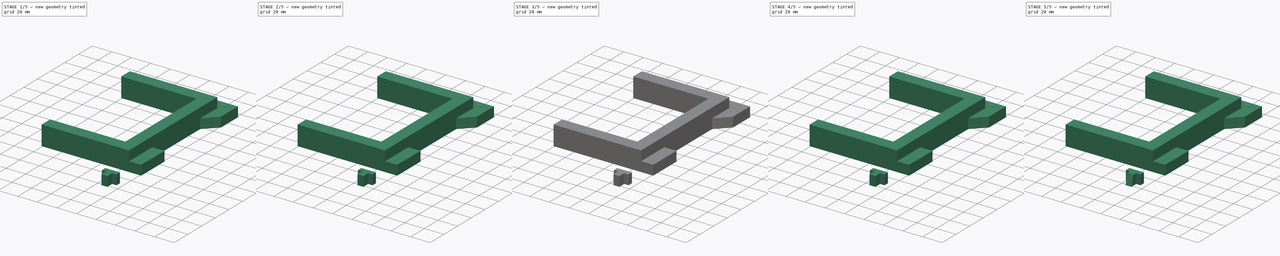
[diagram: build sequence overview — one tinted view per stage of 5, left to right]
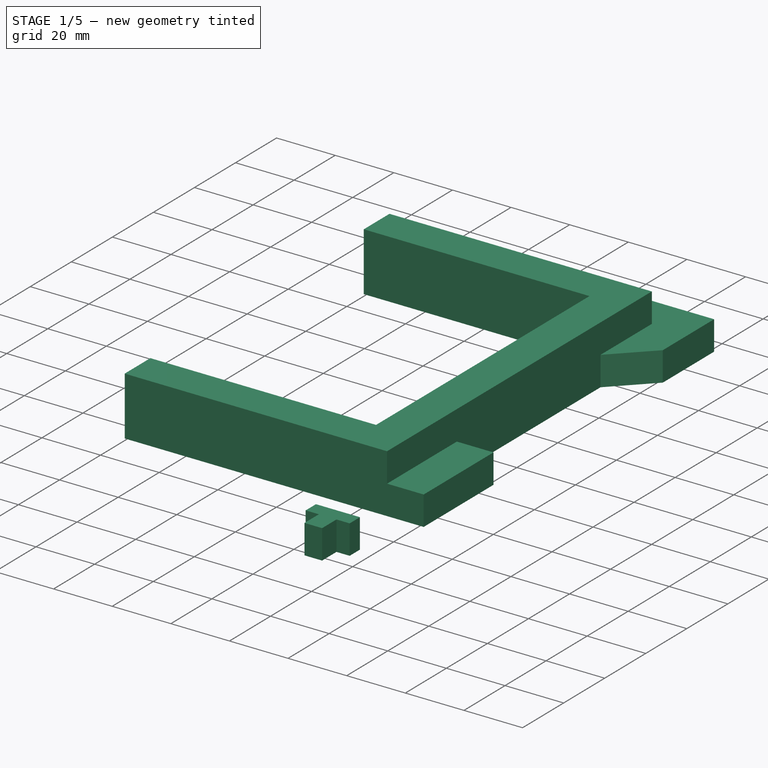
[diagram: stage 1 of 5 — iso view after this stage's code; geometry added in this stage tinted green]
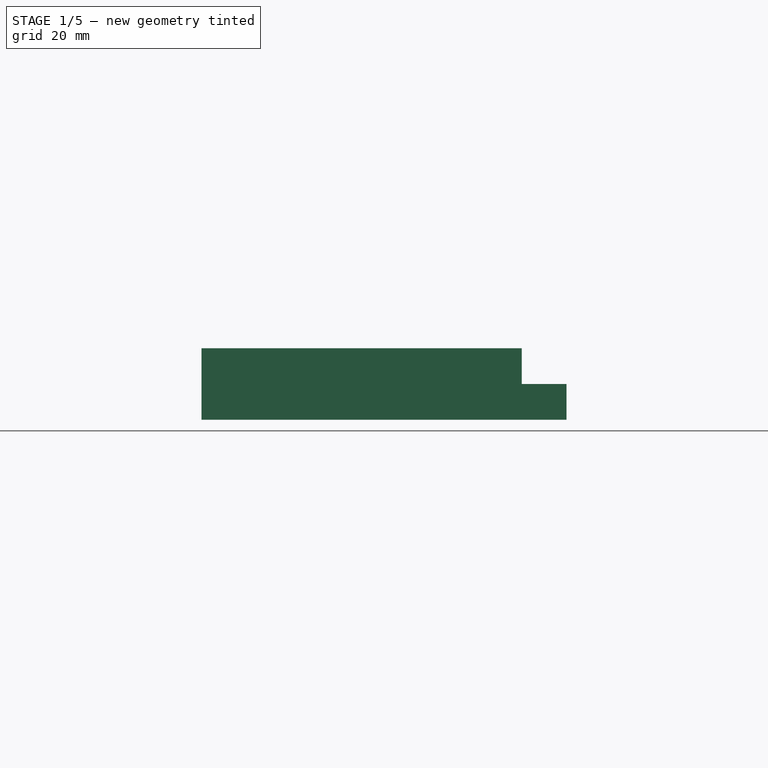
[diagram: stage 1 of 5 — front view after this stage's code; geometry added in this stage tinted green]
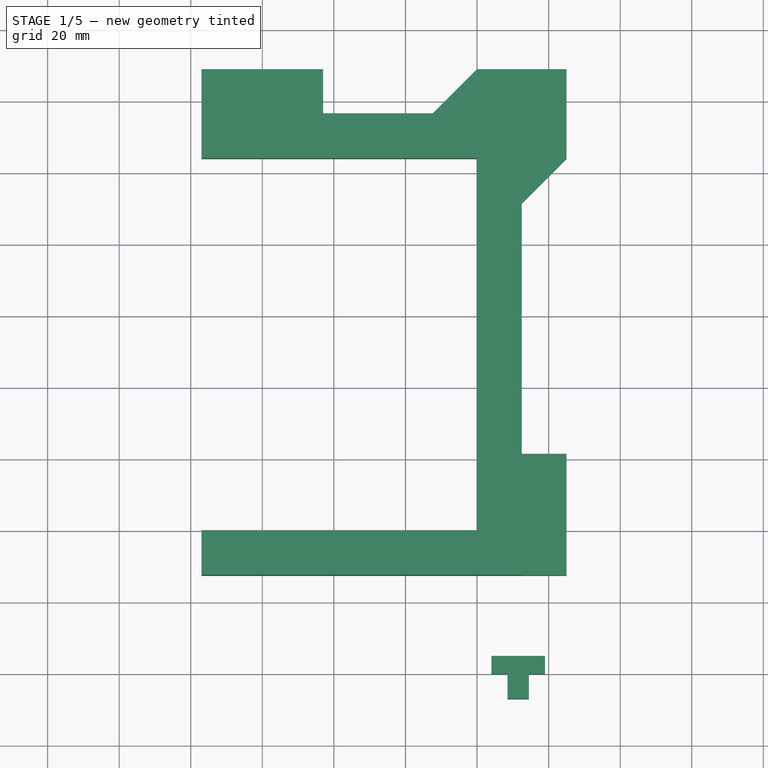
[diagram: stage 1 of 5 — top view after this stage's code; geometry added in this stage tinted green]
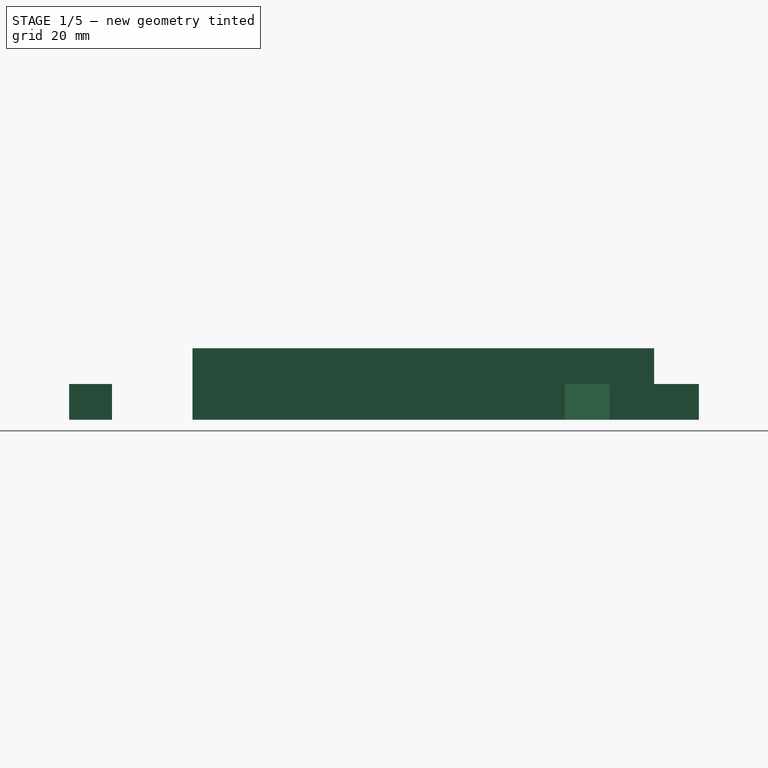
[diagram: stage 1 of 5 — right view after this stage's code; geometry added in this stage tinted green]
FCSTD DOCUMENT  (FreeCAD 0.20R29410 (Git))
Label: HipToBody(reversed)
License: All rights reserved
LicenseURL: http://en.wikipedia.org/wiki/All_rights_reserved
objects: Sketcher::SketchObject×16, PartDesign::Pad×8, PartDesign::Pocket×8, PartDesign::Body×8
note: 56 computed .brp shape members not serialized (recipe doc carries the construction recipe); baked Part::Feature solids carry a one-line shape summary decoded from their .brp

FEATURE [Sketcher::SketchObject] Sketch
  FullyConstrained = true
  MapMode = 5
  Support = -> [XY_Plane]
  sketch-geometry (18):
    g0: LineSegment StartX=-43 StartY=116.5 StartZ=0 EndX=-12.5 EndY=116.5 EndZ=0
    g1: LineSegment StartX=12.5 StartY=91.5 StartZ=0 EndX=12.5 EndY=21.5 EndZ=0
    g2: LineSegment StartX=12.5 StartY=-12.5 StartZ=0 EndX=-77 EndY=-12.5 EndZ=0
    g3: LineSegment StartX=-77 StartY=-12.5 StartZ=0 EndX=-77 EndY=0 EndZ=0
    g4: LineSegment StartX=-77 StartY=0 StartZ=0 EndX=0 EndY=0 EndZ=0
    g5: LineSegment StartX=0 StartY=0 StartZ=0 EndX=0 EndY=104 EndZ=0
    g6: LineSegment StartX=0 StartY=104 StartZ=0 EndX=-77 EndY=104 EndZ=0
    g7: LineSegment StartX=-77 StartY=104 StartZ=0 EndX=-77 EndY=116.5 EndZ=0
    g8: LineSegment StartX=-77 StartY=116.5 StartZ=0 EndX=-77 EndY=129 EndZ=0
    g9: LineSegment StartX=-77 StartY=129 StartZ=0 EndX=-43 EndY=129 EndZ=0
    g10: LineSegment StartX=-43 StartY=129 StartZ=0 EndX=-43 EndY=116.5 EndZ=0
    g11: LineSegment StartX=-12.5 StartY=116.5 StartZ=0 EndX=0 EndY=129 EndZ=0
    g12: LineSegment StartX=0 StartY=129 StartZ=0 EndX=25 EndY=129 EndZ=0
    g13: LineSegment StartX=25 StartY=129 StartZ=0 EndX=25 EndY=104 EndZ=0
    g14: LineSegment StartX=25 StartY=104 StartZ=0 EndX=12.5 EndY=91.5 EndZ=0
    g15: LineSegment StartX=12.5 StartY=-12.5 StartZ=0 EndX=25 EndY=-12.5 EndZ=0
    g16: LineSegment StartX=25 StartY=-12.5 StartZ=0 EndX=25 EndY=21.5 EndZ=0
    g17: LineSegment StartX=25 StartY=21.5 StartZ=0 EndX=12.5 EndY=21.5 EndZ=0
  constraints (53):
    c: Horizontal(g0)
    c: Vertical(g1)
    c: Horizontal(g2)
    c: Vertical(g3)
    c: Coincident(g3,g4)
    c: Horizontal(g4)
    c: Vertical(g5)
    c: Coincident(g5,g6)
    c: Horizontal(g6)
    c: Coincident(g6,g7)
    c: DistanceX(g6,g6) = 77
    c: DistanceY(g3,g3) = 12.5
    c: DistanceX(g4,g4) = 77
    c: DistanceY(g7,g7) = 12.5
    c: Vertical(g7)
    c: Coincident(g5,g4)
    c: Coincident(g4,g-1)
    c: Coincident(g2,g3)
    c: Coincident(g7,g8)
    c: Vertical(g8)
    c: Coincident(g8,g9)
    c: Horizontal(g9)
    c: Coincident(g9,g10)
    c: Vertical(g10)
    c: Coincident(g11,g12)
    c: Horizontal(g12)
    c: Coincident(g12,g13)
    c: Vertical(g13)
    c: Coincident(g13,g14)
    c: Horizontal(g15)
    c: Coincident(g15,g16)
    c: Vertical(g16)
    c: Coincident(g16,g17)
    c: Horizontal(g17)
    c: Coincident(g0,g10)
    c: Coincident(g0,g11)
    c: Coincident(g1,g14)
    c: Coincident(g1,g17)
    c: Equal(g7,g8)
    c: Equal(g8,g10)
    c: Equal(g15,g17)
    c: Equal(g17,g7)
    c: DistanceY(g4,g0) = 116.5
    c: Equal(g16,g9)
    c: DistanceY(g16,g16) = 34
    c: Equal(g14,g11)
    c: DistanceX(g5,g1) = 12.5
    c: Equal(g12,g13)
    c: DistanceY(g13,g13) = 25
    c: DistanceY(g5,g13) = 0
    c: Parallel(g11,g14)
    c: DistanceX(g5,g11) = 0
    c: Coincident(g2,g15)
FEATURE [PartDesign::Pad] Pad  label="MainMalePad"
  Direction = (0,0,1)
  Length = 20
  Length2 = 10
  Profile = -> Sketch
  ReferenceAxis = -> Sketch [N_Axis]
  Type = 0
FEATURE [PartDesign::Body] Body008  label="MaleCon007"
  Group = -> [Sketch014,Pad007,Sketch015,Pocket007]
  Origin = -> Origin008
  Placement = pos=(-32,40.5,20) rot=(0,0,1;1.5708rad)
  Tip = -> Pocket007
FEATURE [Sketcher::SketchObject] Sketch016
  FullyConstrained = true
  MapMode = 5
  Support = -> [XY_Plane009]
  sketch-geometry (8):
    g0: LineSegment StartX=4 StartY=-35 StartZ=0 EndX=19 EndY=-35 EndZ=0
    g1: LineSegment StartX=19 StartY=-35 StartZ=0 EndX=19 EndY=-40 EndZ=0
    g2: LineSegment StartX=19 StartY=-40 StartZ=0 EndX=14.5 EndY=-40 EndZ=0
    g3: LineSegment StartX=14.5 StartY=-40 StartZ=0 EndX=14.5 EndY=-47 EndZ=0
    g4: LineSegment StartX=14.5 StartY=-47 StartZ=0 EndX=8.5 EndY=-47 EndZ=0
    g5: LineSegment StartX=8.5 StartY=-47 StartZ=0 EndX=8.5 EndY=-40 EndZ=0
    g6: LineSegment StartX=8.5 StartY=-40 StartZ=0 EndX=4 EndY=-40 EndZ=0
    g7: LineSegment StartX=4 StartY=-40 StartZ=0 EndX=4 EndY=-35 EndZ=0
  constraints (24):
    c: Horizontal(g0)
    c: Coincident(g0,g1)
    c: Vertical(g1)
    c: Coincident(g1,g2)
    c: Horizontal(g2)
    c: Coincident(g2,g3)
    c: Vertical(g3)
    c: Coincident(g3,g4)
    c: Horizontal(g4)
    c: Coincident(g4,g5)
    c: Vertical(g5)
    c: Coincident(g5,g6)
    c: Horizontal(g6)
    c: Coincident(g6,g7)
    c: Coincident(g7,g0)
    c: DistanceX(g0,g0) = 15
    c: Equal(g7,g1)
    c: Equal(g3,g5)
    c: Equal(g2,g6)
    c: DistanceY(g1,g1) = 5
    c: DistanceY(g5,g5) = 7
    c: DistanceX(g4,g4) = 6
    c: DistanceY(g0,g-1) = 35
    c: DistanceX(g-1,g0) = 4
FEATURE [PartDesign::Pad] Pad008  label="MaleCon1Pad007"
  Direction = (0,0,1)
  Length = 10
  Length2 = 10
  Profile = -> Sketch016
  ReferenceAxis = -> Sketch016 [N_Axis]
  Type = 0
FEATURE [PartDesign::Body] Body009  label="MaleCon008"
  Group = -> [Sketch016,Pad008,Sketch017,Pocket008]
  Origin = -> Origin009
  Placement = pos=(-32,70.5,20) rot=(0,0,1;1.5708rad)
  Tip = -> Pocket008
FEATURE [Sketcher::SketchObject] Sketch018
  ExternalGeometry = -> [Pad]
  FullyConstrained = true
  MapMode = 5
  Placement = pos=(0,0,20) rot=(0,0,1;0rad)
  Support = -> [Pad]
  sketch-geometry (6):
    g0: LineSegment StartX=12.5 StartY=-12.5 StartZ=0 EndX=12.5 EndY=116.5 EndZ=0
    g1: LineSegment StartX=12.5 StartY=116.5 StartZ=0 EndX=-77 EndY=116.5 EndZ=0
    g2: LineSegment StartX=-77 StartY=116.5 StartZ=0 EndX=-77 EndY=129 EndZ=0
    g3: LineSegment StartX=-77 StartY=129 StartZ=0 EndX=25 EndY=129 EndZ=0
    g4: LineSegment StartX=25 StartY=129 StartZ=0 EndX=25 EndY=-12.5 EndZ=0
    g5: LineSegment StartX=25 StartY=-12.5 StartZ=0 EndX=12.5 EndY=-12.5 EndZ=0
  constraints (13):
    c: Coincident(g-3,g0)
    c: Vertical(g0)
    c: Coincident(g0,g1)
    c: Horizontal(g1)
    c: Coincident(g1,g2)
    c: Coincident(g2,g-8)
    c: Coincident(g2,g3)
    c: Coincident(g3,g-6)
    c: Coincident(g3,g4)
    c: Coincident(g4,g-4)
    c: Coincident(g4,g5)
    c: Coincident(g5,g0)
    c: Coincident(g1,g-8)
FEATURE [PartDesign::Pocket] Pocket
  BaseFeature = -> Pad
  Direction = (0,0,-1)
  Length = 10
  Length2 = 5
  Profile = -> Sketch018
  ReferenceAxis = -> Sketch018 [N_Axis]
  Type = 0
FEATURE [PartDesign::Body] Body  label="MainMale"
  Group = -> [Sketch,Pad,Sketch018,Pocket]
  Origin = -> Origin
  Placement = pos=(3,0,0) rot=(0,0,1;0rad)
  Tip = -> Pocket
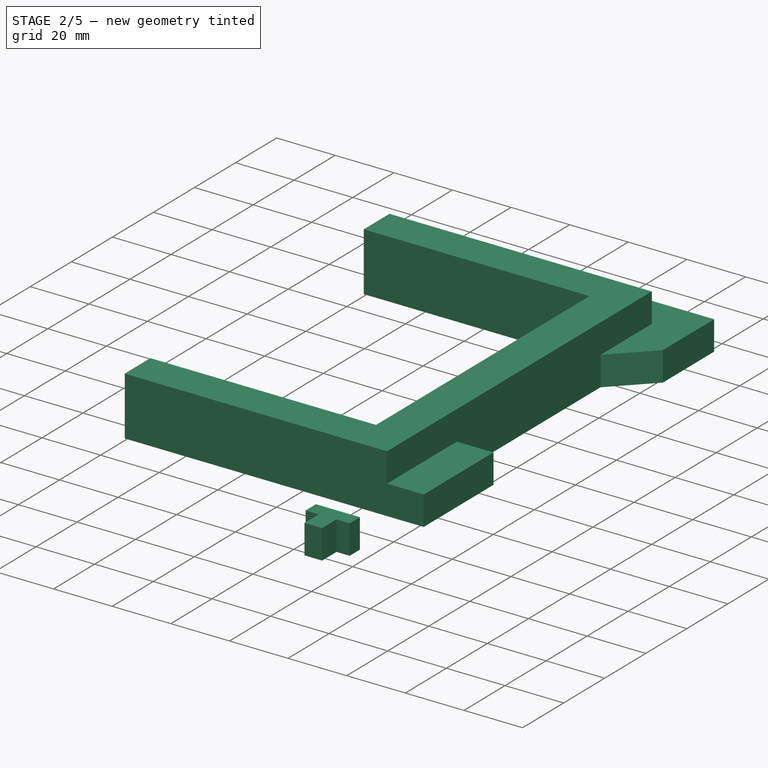
[diagram: stage 2 of 5 — iso view after this stage's code; geometry added in this stage tinted green]
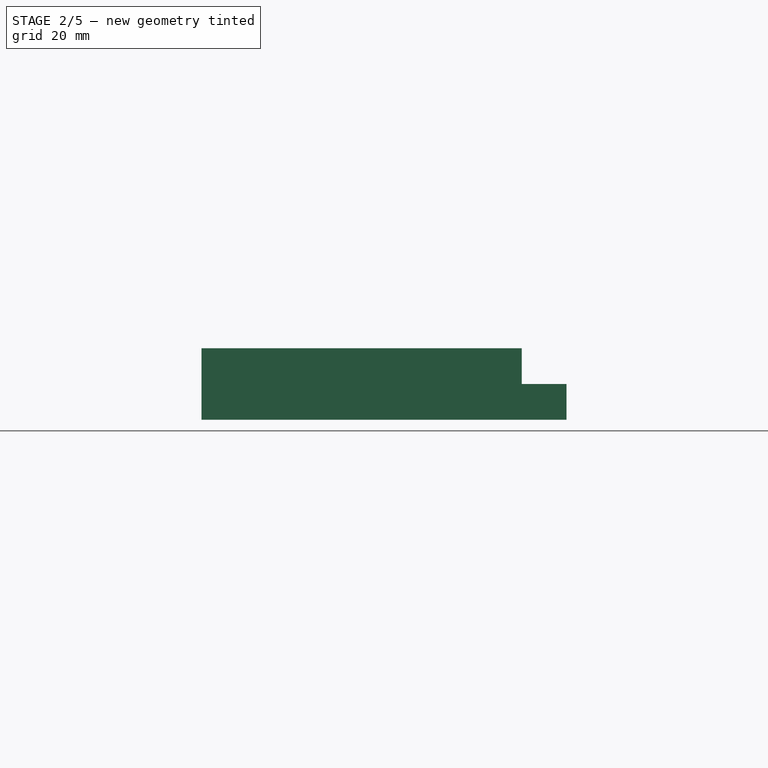
[diagram: stage 2 of 5 — front view after this stage's code; geometry added in this stage tinted green]
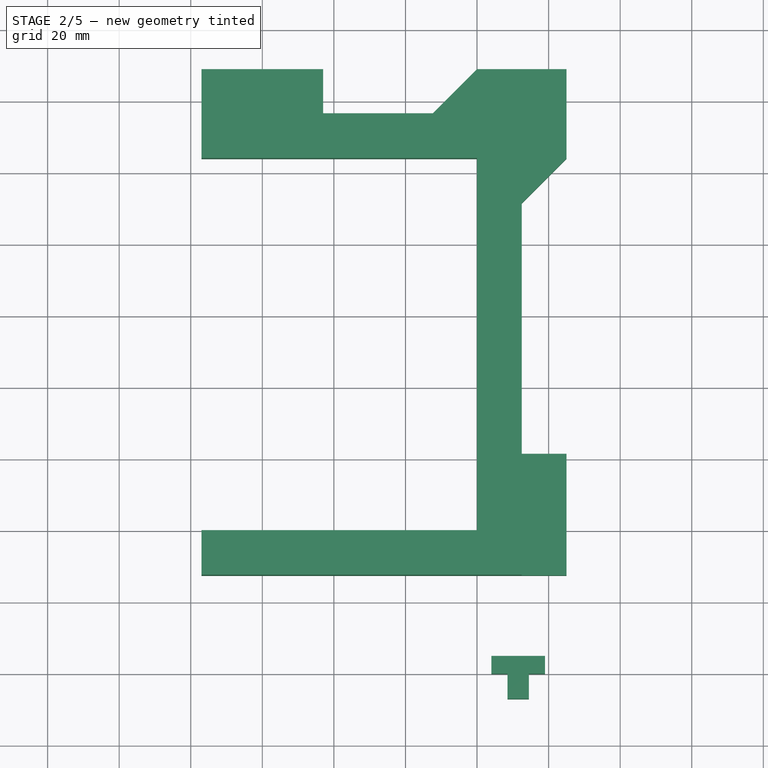
[diagram: stage 2 of 5 — top view after this stage's code; geometry added in this stage tinted green]
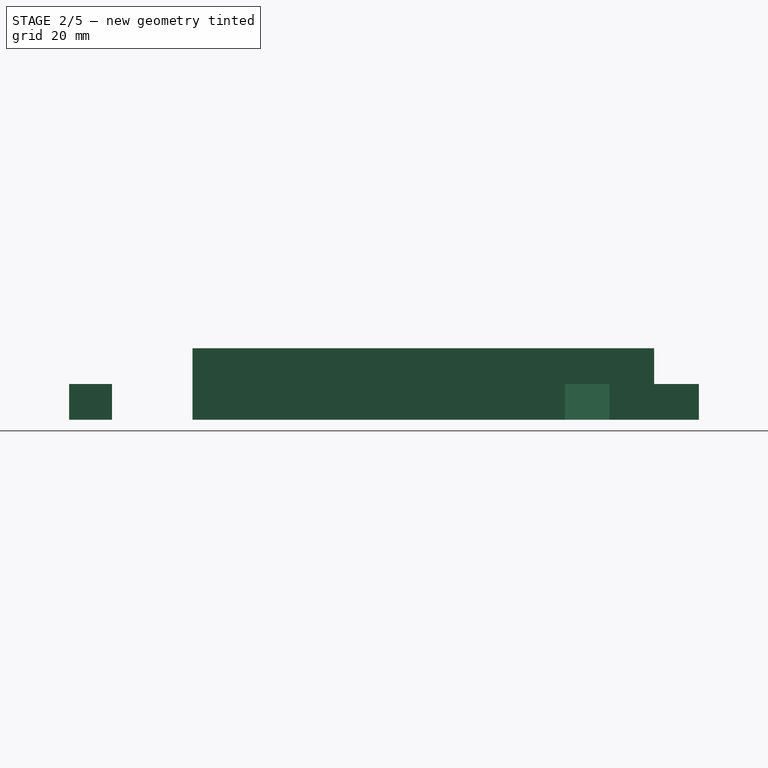
[diagram: stage 2 of 5 — right view after this stage's code; geometry added in this stage tinted green]
FEATURE [PartDesign::Body] Body005  label="MaleCon004"
  Group = -> [Sketch008,Pad004,Sketch009,Pocket004]
  Origin = -> Origin005
  Placement = pos=(-7.75,69,20) rot=(0,0,1;3.14159rad)
  Tip = -> Pocket004
FEATURE [Sketcher::SketchObject] Sketch010
  FullyConstrained = true
  MapMode = 5
  Support = -> [XY_Plane006]
  sketch-geometry (8):
    g0: LineSegment StartX=4 StartY=-35 StartZ=0 EndX=19 EndY=-35 EndZ=0
    g1: LineSegment StartX=19 StartY=-35 StartZ=0 EndX=19 EndY=-40 EndZ=0
    g2: LineSegment StartX=19 StartY=-40 StartZ=0 EndX=14.5 EndY=-40 EndZ=0
    g3: LineSegment StartX=14.5 StartY=-40 StartZ=0 EndX=14.5 EndY=-47 EndZ=0
    g4: LineSegment StartX=14.5 StartY=-47 StartZ=0 EndX=8.5 EndY=-47 EndZ=0
    g5: LineSegment StartX=8.5 StartY=-47 StartZ=0 EndX=8.5 EndY=-40 EndZ=0
    g6: LineSegment StartX=8.5 StartY=-40 StartZ=0 EndX=4 EndY=-40 EndZ=0
    g7: LineSegment StartX=4 StartY=-40 StartZ=0 EndX=4 EndY=-35 EndZ=0
  constraints (24):
    c: Horizontal(g0)
    c: Coincident(g0,g1)
    c: Vertical(g1)
    c: Coincident(g1,g2)
    c: Horizontal(g2)
    c: Coincident(g2,g3)
    c: Vertical(g3)
    c: Coincident(g3,g4)
    c: Horizontal(g4)
    c: Coincident(g4,g5)
    c: Vertical(g5)
    c: Coincident(g5,g6)
    c: Horizontal(g6)
    c: Coincident(g6,g7)
    c: Coincident(g7,g0)
    c: DistanceX(g0,g0) = 15
    c: Equal(g7,g1)
    c: Equal(g3,g5)
    c: Equal(g2,g6)
    c: DistanceY(g1,g1) = 5
    c: DistanceY(g5,g5) = 7
    c: DistanceX(g4,g4) = 6
    c: DistanceY(g0,g-1) = 35
    c: DistanceX(g-1,g0) = 4
FEATURE [PartDesign::Pad] Pad005  label="MaleCon1Pad004"
  Direction = (0,0,1)
  Length = 10
  Length2 = 10
  Profile = -> Sketch010
  ReferenceAxis = -> Sketch010 [N_Axis]
  Type = 0
FEATURE [PartDesign::Body] Body006  label="MaleCon005"
  Group = -> [Sketch010,Pad005,Sketch011,Pocket005]
  Origin = -> Origin006
  Placement = pos=(-37,69,20) rot=(0,0,1;3.14159rad)
  Tip = -> Pocket005
FEATURE [Sketcher::SketchObject] Sketch012
  FullyConstrained = true
  MapMode = 5
  Support = -> [XY_Plane007]
  sketch-geometry (8):
    g0: LineSegment StartX=4 StartY=-35 StartZ=0 EndX=19 EndY=-35 EndZ=0
    g1: LineSegment StartX=19 StartY=-35 StartZ=0 EndX=19 EndY=-40 EndZ=0
    g2: LineSegment StartX=19 StartY=-40 StartZ=0 EndX=14.5 EndY=-40 EndZ=0
    g3: LineSegment StartX=14.5 StartY=-40 StartZ=0 EndX=14.5 EndY=-47 EndZ=0
    g4: LineSegment StartX=14.5 StartY=-47 StartZ=0 EndX=8.5 EndY=-47 EndZ=0
    g5: LineSegment StartX=8.5 StartY=-47 StartZ=0 EndX=8.5 EndY=-40 EndZ=0
    g6: LineSegment StartX=8.5 StartY=-40 StartZ=0 EndX=4 EndY=-40 EndZ=0
    g7: LineSegment StartX=4 StartY=-40 StartZ=0 EndX=4 EndY=-35 EndZ=0
  constraints (24):
    c: Horizontal(g0)
    c: Coincident(g0,g1)
    c: Vertical(g1)
    c: Coincident(g1,g2)
    c: Horizontal(g2)
    c: Coincident(g2,g3)
    c: Vertical(g3)
    c: Coincident(g3,g4)
    c: Horizontal(g4)
    c: Coincident(g4,g5)
    c: Vertical(g5)
    c: Coincident(g5,g6)
    c: Horizontal(g6)
    c: Coincident(g6,g7)
    c: Coincident(g7,g0)
    c: DistanceX(g0,g0) = 15
    c: Equal(g7,g1)
    c: Equal(g3,g5)
    c: Equal(g2,g6)
    c: DistanceY(g1,g1) = 5
    c: DistanceY(g5,g5) = 7
    c: DistanceX(g4,g4) = 6
    c: DistanceY(g0,g-1) = 35
    c: DistanceX(g-1,g0) = 4
FEATURE [PartDesign::Pad] Pad006  label="MaleCon1Pad005"
  Direction = (0,0,1)
  Length = 10
  Length2 = 10
  Profile = -> Sketch012
  ReferenceAxis = -> Sketch012 [N_Axis]
  Type = 0
FEATURE [PartDesign::Body] Body007  label="MaleCon006"
  Group = -> [Sketch012,Pad006,Sketch013,Pocket006]
  Origin = -> Origin007
  Placement = pos=(-32,10.5,20) rot=(0,0,1;1.5708rad)
  Tip = -> Pocket006
FEATURE [Sketcher::SketchObject] Sketch014
  FullyConstrained = true
  MapMode = 5
  Support = -> [XY_Plane008]
  sketch-geometry (8):
    g0: LineSegment StartX=4 StartY=-35 StartZ=0 EndX=19 EndY=-35 EndZ=0
    g1: LineSegment StartX=19 StartY=-35 StartZ=0 EndX=19 EndY=-40 EndZ=0
    g2: LineSegment StartX=19 StartY=-40 StartZ=0 EndX=14.5 EndY=-40 EndZ=0
    g3: LineSegment StartX=14.5 StartY=-40 StartZ=0 EndX=14.5 EndY=-47 EndZ=0
    g4: LineSegment StartX=14.5 StartY=-47 StartZ=0 EndX=8.5 EndY=-47 EndZ=0
    g5: LineSegment StartX=8.5 StartY=-47 StartZ=0 EndX=8.5 EndY=-40 EndZ=0
    g6: LineSegment StartX=8.5 StartY=-40 StartZ=0 EndX=4 EndY=-40 EndZ=0
    g7: LineSegment StartX=4 StartY=-40 StartZ=0 EndX=4 EndY=-35 EndZ=0
  constraints (24):
    c: Horizontal(g0)
    c: Coincident(g0,g1)
    c: Vertical(g1)
    c: Coincident(g1,g2)
    c: Horizontal(g2)
    c: Coincident(g2,g3)
    c: Vertical(g3)
    c: Coincident(g3,g4)
    c: Horizontal(g4)
    c: Coincident(g4,g5)
    c: Vertical(g5)
    c: Coincident(g5,g6)
    c: Horizontal(g6)
    c: Coincident(g6,g7)
    c: Coincident(g7,g0)
    c: DistanceX(g0,g0) = 15
    c: Equal(g7,g1)
    c: Equal(g3,g5)
    c: Equal(g2,g6)
    c: DistanceY(g1,g1) = 5
    c: DistanceY(g5,g5) = 7
    c: DistanceX(g4,g4) = 6
    c: DistanceY(g0,g-1) = 35
    c: DistanceX(g-1,g0) = 4
FEATURE [PartDesign::Pad] Pad007  label="MaleCon1Pad006"
  Direction = (0,0,1)
  Length = 10
  Length2 = 10
  Profile = -> Sketch014
  ReferenceAxis = -> Sketch014 [N_Axis]
  Type = 0
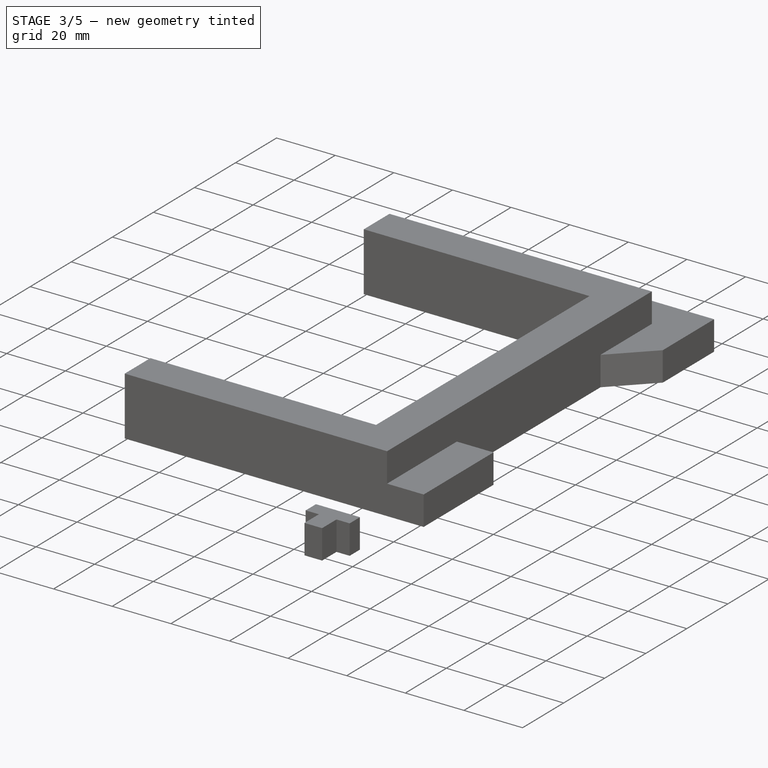
[diagram: stage 3 of 5 — iso view after this stage's code; geometry added in this stage tinted green]
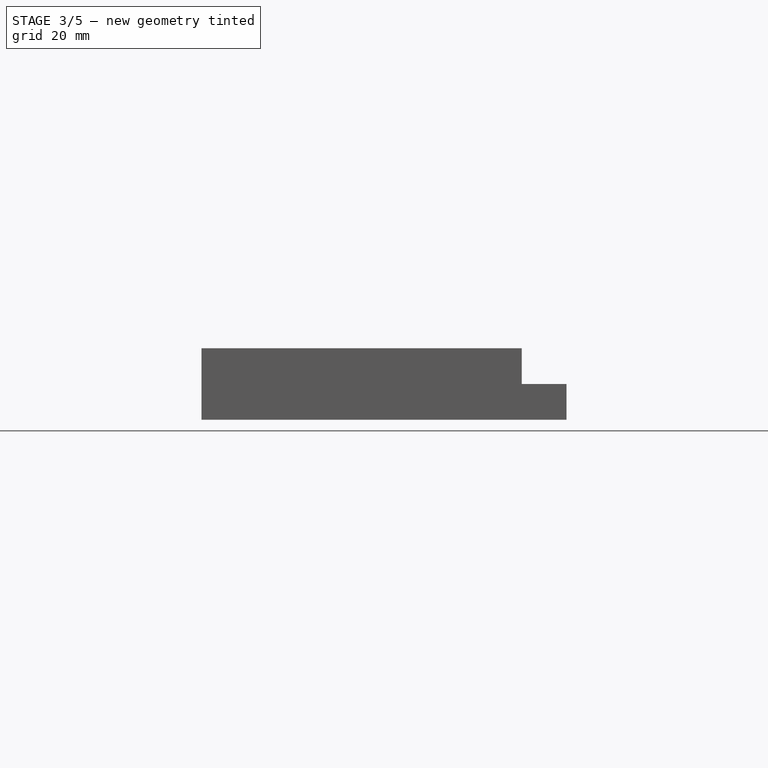
[diagram: stage 3 of 5 — front view after this stage's code; geometry added in this stage tinted green]
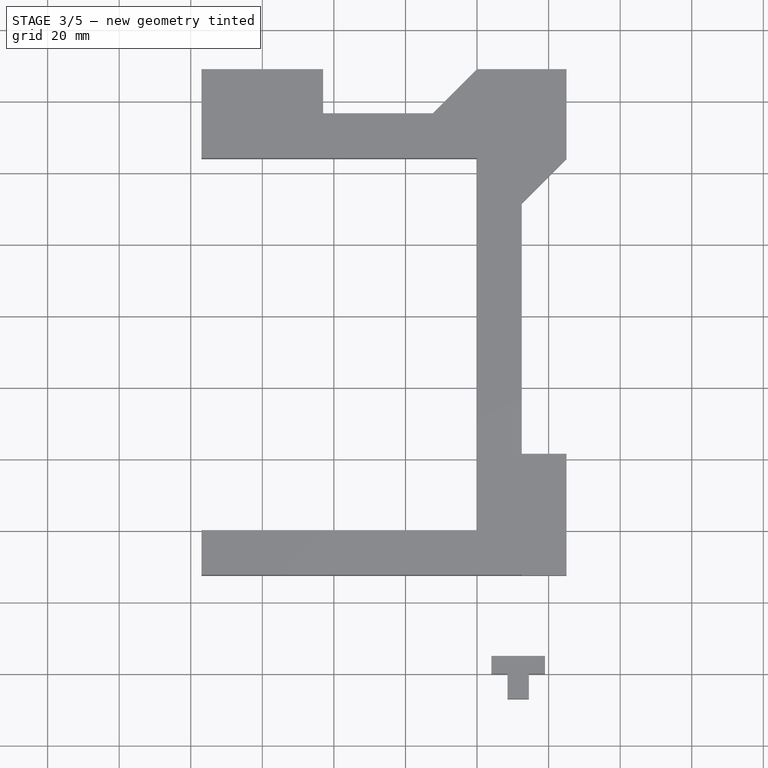
[diagram: stage 3 of 5 — top view after this stage's code; geometry added in this stage tinted green]
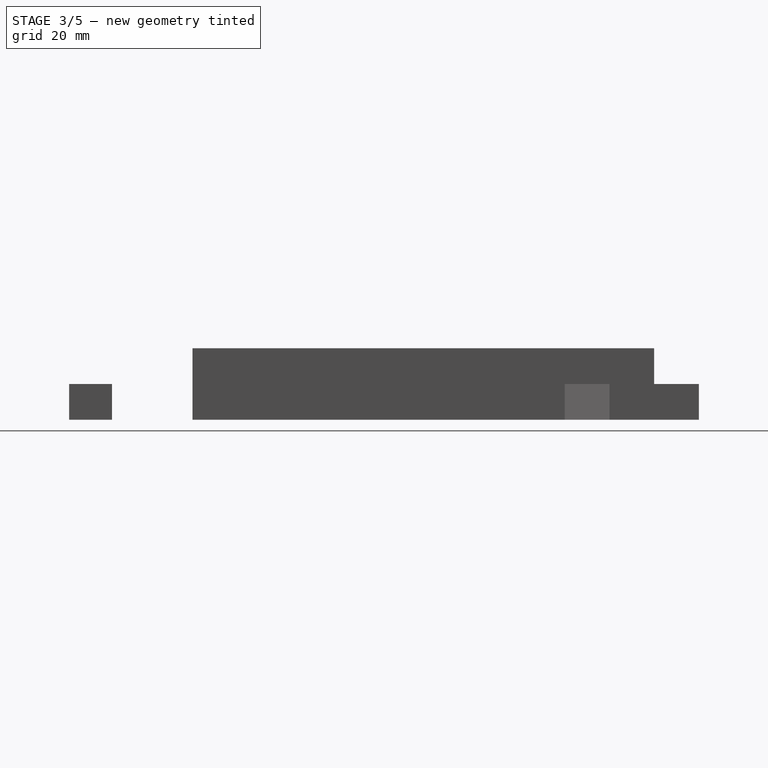
[diagram: stage 3 of 5 — right view after this stage's code; geometry added in this stage tinted green]
FEATURE [Sketcher::SketchObject] Sketch002
  FullyConstrained = true
  MapMode = 5
  Support = -> [XY_Plane002]
  sketch-geometry (8):
    g0: LineSegment StartX=4 StartY=-35 StartZ=0 EndX=19 EndY=-35 EndZ=0
    g1: LineSegment StartX=19 StartY=-35 StartZ=0 EndX=19 EndY=-40 EndZ=0
    g2: LineSegment StartX=19 StartY=-40 StartZ=0 EndX=14.5 EndY=-40 EndZ=0
    g3: LineSegment StartX=14.5 StartY=-40 StartZ=0 EndX=14.5 EndY=-47 EndZ=0
    g4: LineSegment StartX=14.5 StartY=-47 StartZ=0 EndX=8.5 EndY=-47 EndZ=0
    g5: LineSegment StartX=8.5 StartY=-47 StartZ=0 EndX=8.5 EndY=-40 EndZ=0
    g6: LineSegment StartX=8.5 StartY=-40 StartZ=0 EndX=4 EndY=-40 EndZ=0
    g7: LineSegment StartX=4 StartY=-40 StartZ=0 EndX=4 EndY=-35 EndZ=0
  constraints (24):
    c: Horizontal(g0)
    c: Coincident(g0,g1)
    c: Vertical(g1)
    c: Coincident(g1,g2)
    c: Horizontal(g2)
    c: Coincident(g2,g3)
    c: Vertical(g3)
    c: Coincident(g3,g4)
    c: Horizontal(g4)
    c: Coincident(g4,g5)
    c: Vertical(g5)
    c: Coincident(g5,g6)
    c: Horizontal(g6)
    c: Coincident(g6,g7)
    c: Coincident(g7,g0)
    c: DistanceX(g0,g0) = 15
    c: Equal(g7,g1)
    c: Equal(g3,g5)
    c: Equal(g2,g6)
    c: DistanceY(g1,g1) = 5
    c: DistanceY(g5,g5) = 7
    c: DistanceX(g4,g4) = 6
    c: DistanceY(g0,g-1) = 35
    c: DistanceX(g-1,g0) = 4
FEATURE [PartDesign::Pad] Pad001  label="MaleCon1Pad"
  Direction = (0,0,1)
  Length = 10
  Length2 = 10
  Profile = -> Sketch002
  ReferenceAxis = -> Sketch002 [N_Axis]
  Type = 0
FEATURE [PartDesign::Body] Body002  label="MaleCon1"
  Group = -> [Sketch002,Pad001,Sketch003,Pocket001]
  Origin = -> Origin002
  Placement = pos=(-60,35,20) rot=(0,0,1;0rad)
  Tip = -> Pocket001
FEATURE [Sketcher::SketchObject] Sketch004
  FullyConstrained = true
  MapMode = 5
  Support = -> [XY_Plane003]
  sketch-geometry (8):
    g0: LineSegment StartX=4 StartY=-35 StartZ=0 EndX=19 EndY=-35 EndZ=0
    g1: LineSegment StartX=19 StartY=-35 StartZ=0 EndX=19 EndY=-40 EndZ=0
    g2: LineSegment StartX=19 StartY=-40 StartZ=0 EndX=14.5 EndY=-40 EndZ=0
    g3: LineSegment StartX=14.5 StartY=-40 StartZ=0 EndX=14.5 EndY=-47 EndZ=0
    g4: LineSegment StartX=14.5 StartY=-47 StartZ=0 EndX=8.5 EndY=-47 EndZ=0
    g5: LineSegment StartX=8.5 StartY=-47 StartZ=0 EndX=8.5 EndY=-40 EndZ=0
    g6: LineSegment StartX=8.5 StartY=-40 StartZ=0 EndX=4 EndY=-40 EndZ=0
    g7: LineSegment StartX=4 StartY=-40 StartZ=0 EndX=4 EndY=-35 EndZ=0
  constraints (24):
    c: Horizontal(g0)
    c: Coincident(g0,g1)
    c: Vertical(g1)
    c: Coincident(g1,g2)
    c: Horizontal(g2)
    c: Coincident(g2,g3)
    c: Vertical(g3)
    c: Coincident(g3,g4)
    c: Horizontal(g4)
    c: Coincident(g4,g5)
    c: Vertical(g5)
    c: Coincident(g5,g6)
    c: Horizontal(g6)
    c: Coincident(g6,g7)
    c: Coincident(g7,g0)
    c: DistanceX(g0,g0) = 15
    c: Equal(g7,g1)
    c: Equal(g3,g5)
    c: Equal(g2,g6)
    c: DistanceY(g1,g1) = 5
    c: DistanceY(g5,g5) = 7
    c: DistanceX(g4,g4) = 6
    c: DistanceY(g0,g-1) = 35
    c: DistanceX(g-1,g0) = 4
FEATURE [PartDesign::Pad] Pad002  label="MaleCon1Pad001"
  Direction = (0,0,1)
  Length = 10
  Length2 = 10
  Profile = -> Sketch004
  ReferenceAxis = -> Sketch004 [N_Axis]
  Type = 0
FEATURE [PartDesign::Body] Body003  label="MaleCon002"
  Group = -> [Sketch004,Pad002,Sketch005,Pocket002]
  Origin = -> Origin003
  Placement = pos=(-30.75,35,20) rot=(0,0,1;0rad)
  Tip = -> Pocket002
FEATURE [Sketcher::SketchObject] Sketch008
  FullyConstrained = true
  MapMode = 5
  Support = -> [XY_Plane005]
  sketch-geometry (8):
    g0: LineSegment StartX=4 StartY=-35 StartZ=0 EndX=19 EndY=-35 EndZ=0
    g1: LineSegment StartX=19 StartY=-35 StartZ=0 EndX=19 EndY=-40 EndZ=0
    g2: LineSegment StartX=19 StartY=-40 StartZ=0 EndX=14.5 EndY=-40 EndZ=0
    g3: LineSegment StartX=14.5 StartY=-40 StartZ=0 EndX=14.5 EndY=-47 EndZ=0
    g4: LineSegment StartX=14.5 StartY=-47 StartZ=0 EndX=8.5 EndY=-47 EndZ=0
    g5: LineSegment StartX=8.5 StartY=-47 StartZ=0 EndX=8.5 EndY=-40 EndZ=0
    g6: LineSegment StartX=8.5 StartY=-40 StartZ=0 EndX=4 EndY=-40 EndZ=0
    g7: LineSegment StartX=4 StartY=-40 StartZ=0 EndX=4 EndY=-35 EndZ=0
  constraints (24):
    c: Horizontal(g0)
    c: Coincident(g0,g1)
    c: Vertical(g1)
    c: Coincident(g1,g2)
    c: Horizontal(g2)
    c: Coincident(g2,g3)
    c: Vertical(g3)
    c: Coincident(g3,g4)
    c: Horizontal(g4)
    c: Coincident(g4,g5)
    c: Vertical(g5)
    c: Coincident(g5,g6)
    c: Horizontal(g6)
    c: Coincident(g6,g7)
    c: Coincident(g7,g0)
    c: DistanceX(g0,g0) = 15
    c: Equal(g7,g1)
    c: Equal(g3,g5)
    c: Equal(g2,g6)
    c: DistanceY(g1,g1) = 5
    c: DistanceY(g5,g5) = 7
    c: DistanceX(g4,g4) = 6
    c: DistanceY(g0,g-1) = 35
    c: DistanceX(g-1,g0) = 4
FEATURE [PartDesign::Pad] Pad004  label="MaleCon1Pad003"
  Direction = (0,0,1)
  Length = 10
  Length2 = 10
  Profile = -> Sketch008
  ReferenceAxis = -> Sketch008 [N_Axis]
  Type = 0
FEATURE [Sketcher::SketchObject] Sketch017
  ExternalGeometry = -> [Pad008]
  FullyConstrained = true
  MapMode = 5
  Placement = pos=(14.5,0,0) rot=(0.57735,0.57735,0.57735;2.0944rad)
  Support = -> [Pad008]
  sketch-geometry (3):
    g0: LineSegment StartX=-44 StartY=10 StartZ=0 EndX=-47 EndY=0 EndZ=0
    g1: LineSegment StartX=-47 StartY=0 StartZ=0 EndX=-47 EndY=10 EndZ=0
    g2: LineSegment StartX=-47 StartY=10 StartZ=0 EndX=-44 EndY=10 EndZ=0
  constraints (7):
    c: PointOnObject(g0,g-3)
    c: Coincident(g0,g-4)
    c: Coincident(g0,g1)
    c: Coincident(g1,g-4)
    c: Coincident(g1,g2)
    c: Coincident(g2,g0)
    c: DistanceX(g2,g2) = 3
FEATURE [PartDesign::Pocket] Pocket008  label="MaleCon1Pocket007"
  BaseFeature = -> Pad008
  Direction = (-1,0,0)
  Length = 5
  Length2 = 5
  Profile = -> Sketch017
  ReferenceAxis = -> Sketch017 [N_Axis]
  Type = 1
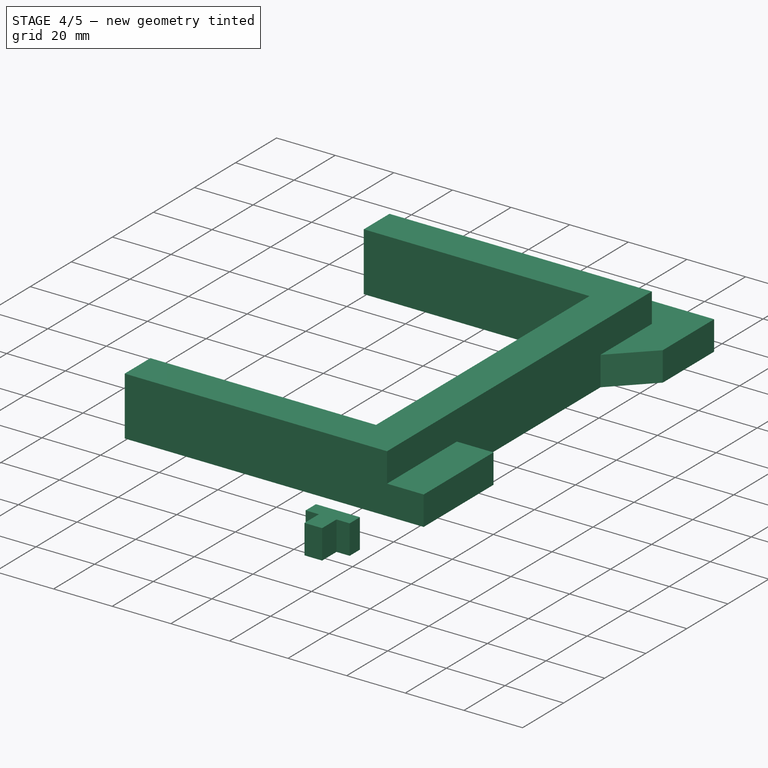
[diagram: stage 4 of 5 — iso view after this stage's code; geometry added in this stage tinted green]
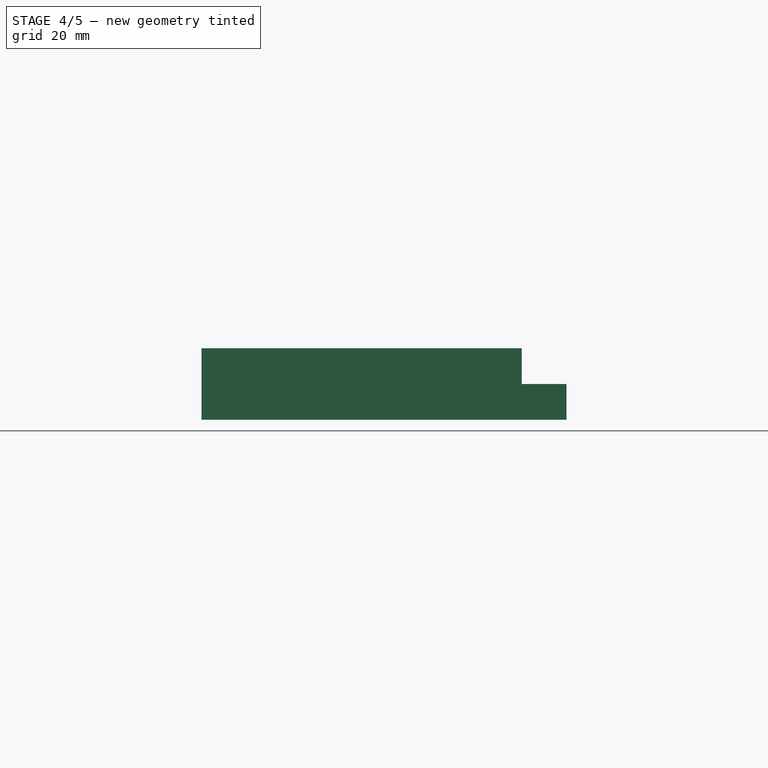
[diagram: stage 4 of 5 — front view after this stage's code; geometry added in this stage tinted green]
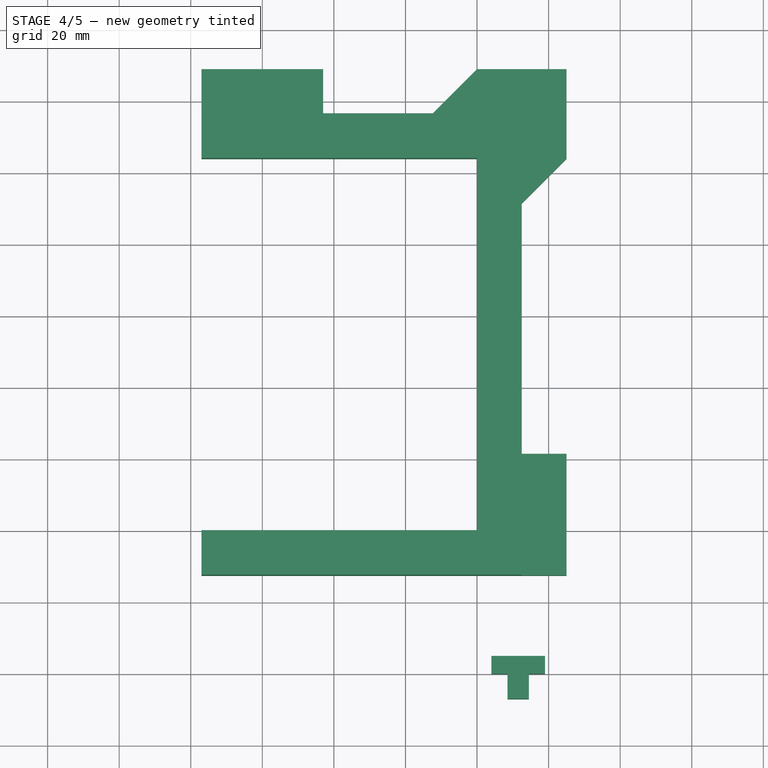
[diagram: stage 4 of 5 — top view after this stage's code; geometry added in this stage tinted green]
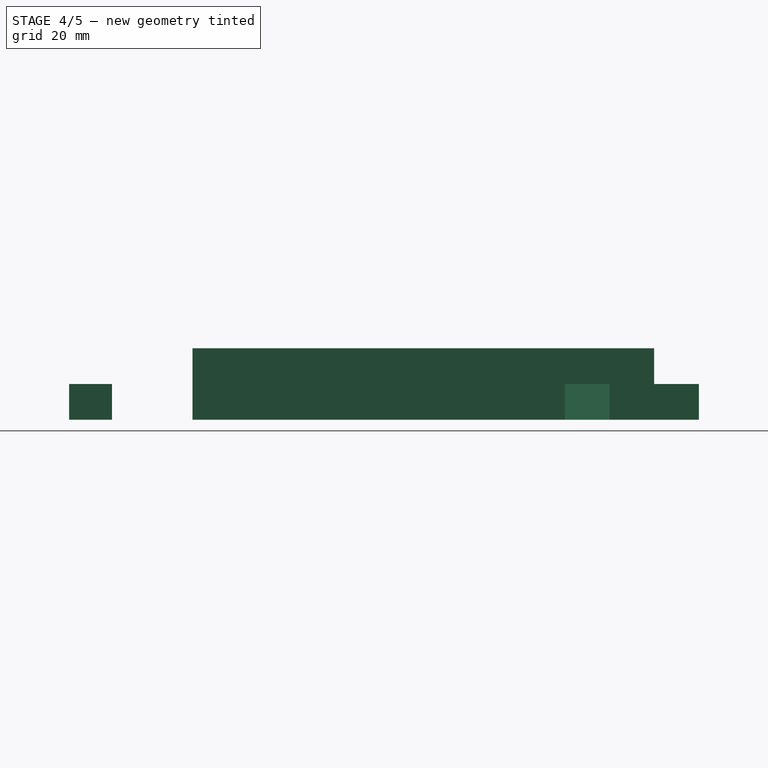
[diagram: stage 4 of 5 — right view after this stage's code; geometry added in this stage tinted green]
FEATURE [Sketcher::SketchObject] Sketch011
  ExternalGeometry = -> [Pad005]
  FullyConstrained = true
  MapMode = 5
  Placement = pos=(14.5,0,0) rot=(0.57735,0.57735,0.57735;2.0944rad)
  Support = -> [Pad005]
  sketch-geometry (3):
    g0: LineSegment StartX=-44 StartY=10 StartZ=0 EndX=-47 EndY=0 EndZ=0
    g1: LineSegment StartX=-47 StartY=0 StartZ=0 EndX=-47 EndY=10 EndZ=0
    g2: LineSegment StartX=-47 StartY=10 StartZ=0 EndX=-44 EndY=10 EndZ=0
  constraints (7):
    c: PointOnObject(g0,g-3)
    c: Coincident(g0,g-4)
    c: Coincident(g0,g1)
    c: Coincident(g1,g-4)
    c: Coincident(g1,g2)
    c: Coincident(g2,g0)
    c: DistanceX(g2,g2) = 3
FEATURE [PartDesign::Pocket] Pocket005  label="MaleCon1Pocket004"
  BaseFeature = -> Pad005
  Direction = (-1,0,0)
  Length = 5
  Length2 = 5
  Profile = -> Sketch011
  ReferenceAxis = -> Sketch011 [N_Axis]
  Type = 1
FEATURE [Sketcher::SketchObject] Sketch013
  ExternalGeometry = -> [Pad006]
  FullyConstrained = true
  MapMode = 5
  Placement = pos=(14.5,0,0) rot=(0.57735,0.57735,0.57735;2.0944rad)
  Support = -> [Pad006]
  sketch-geometry (3):
    g0: LineSegment StartX=-44 StartY=10 StartZ=0 EndX=-47 EndY=0 EndZ=0
    g1: LineSegment StartX=-47 StartY=0 StartZ=0 EndX=-47 EndY=10 EndZ=0
    g2: LineSegment StartX=-47 StartY=10 StartZ=0 EndX=-44 EndY=10 EndZ=0
  constraints (7):
    c: PointOnObject(g0,g-3)
    c: Coincident(g0,g-4)
    c: Coincident(g0,g1)
    c: Coincident(g1,g-4)
    c: Coincident(g1,g2)
    c: Coincident(g2,g0)
    c: DistanceX(g2,g2) = 3
FEATURE [PartDesign::Pocket] Pocket006  label="MaleCon1Pocket005"
  BaseFeature = -> Pad006
  Direction = (-1,0,0)
  Length = 5
  Length2 = 5
  Profile = -> Sketch013
  ReferenceAxis = -> Sketch013 [N_Axis]
  Type = 1
FEATURE [Sketcher::SketchObject] Sketch015
  ExternalGeometry = -> [Pad007]
  FullyConstrained = true
  MapMode = 5
  Placement = pos=(14.5,0,0) rot=(0.57735,0.57735,0.57735;2.0944rad)
  Support = -> [Pad007]
  sketch-geometry (3):
    g0: LineSegment StartX=-44 StartY=10 StartZ=0 EndX=-47 EndY=0 EndZ=0
    g1: LineSegment StartX=-47 StartY=0 StartZ=0 EndX=-47 EndY=10 EndZ=0
    g2: LineSegment StartX=-47 StartY=10 StartZ=0 EndX=-44 EndY=10 EndZ=0
  constraints (7):
    c: PointOnObject(g0,g-3)
    c: Coincident(g0,g-4)
    c: Coincident(g0,g1)
    c: Coincident(g1,g-4)
    c: Coincident(g1,g2)
    c: Coincident(g2,g0)
    c: DistanceX(g2,g2) = 3
FEATURE [PartDesign::Pocket] Pocket007  label="MaleCon1Pocket006"
  BaseFeature = -> Pad007
  Direction = (-1,0,0)
  Length = 5
  Length2 = 5
  Profile = -> Sketch015
  ReferenceAxis = -> Sketch015 [N_Axis]
  Type = 1
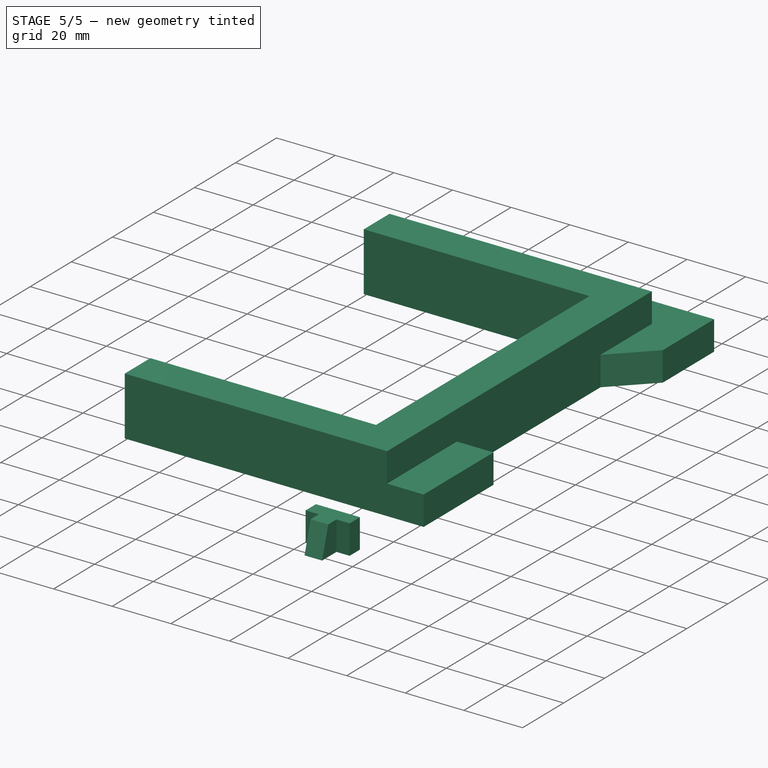
[diagram: stage 5 of 5 — iso view after this stage's code; geometry added in this stage tinted green]
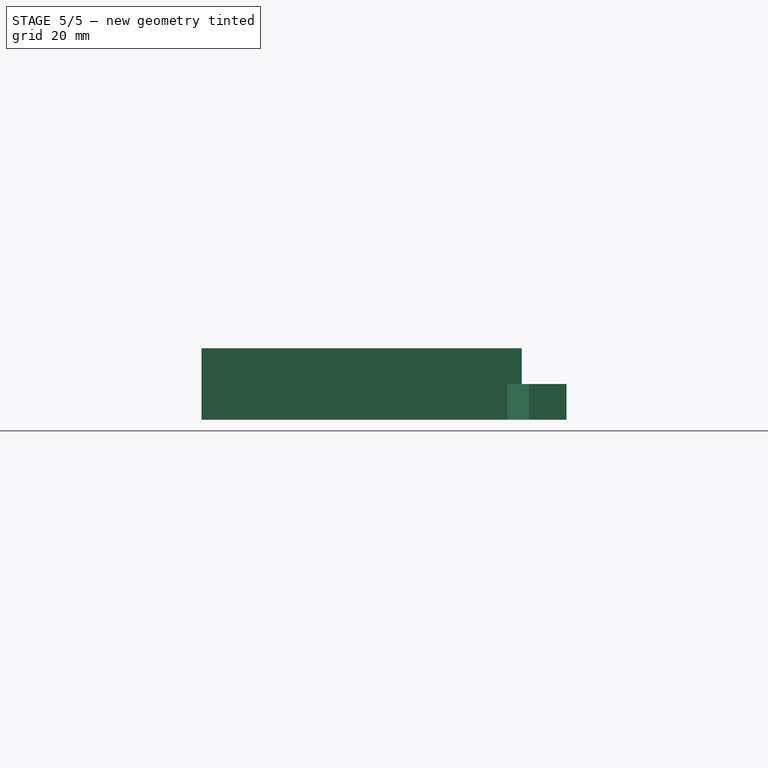
[diagram: stage 5 of 5 — front view after this stage's code; geometry added in this stage tinted green]
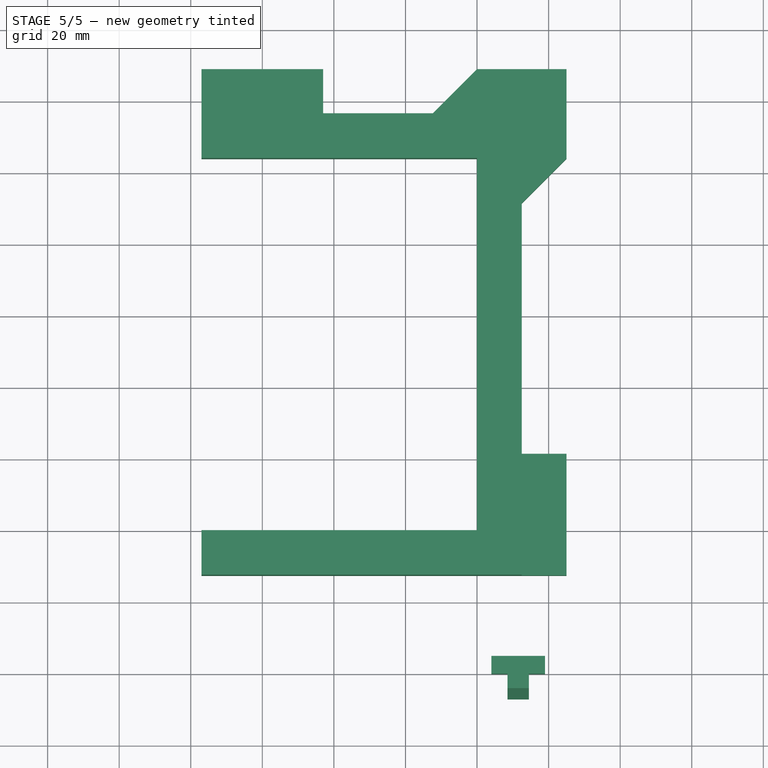
[diagram: stage 5 of 5 — top view after this stage's code; geometry added in this stage tinted green]
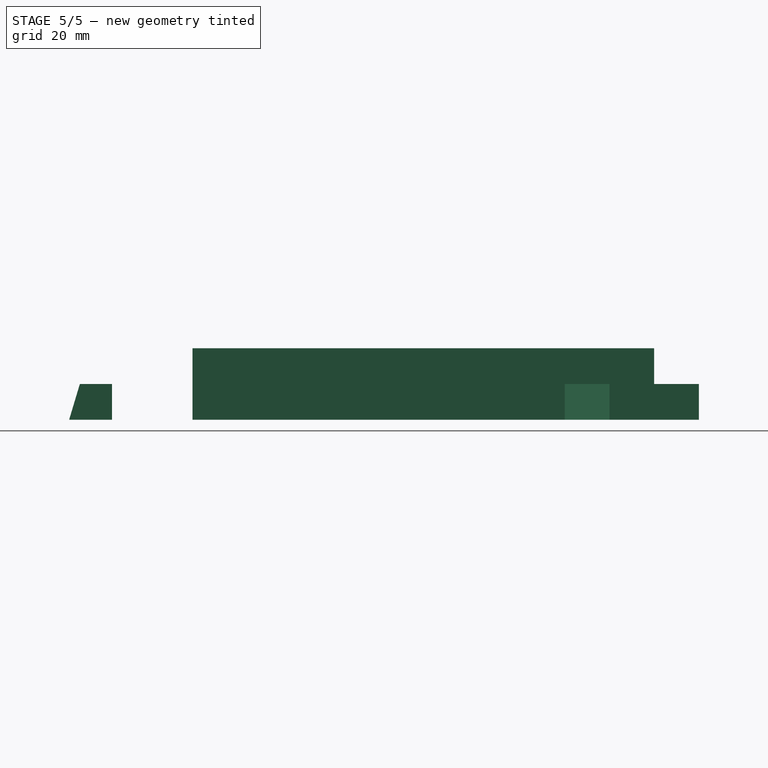
[diagram: stage 5 of 5 — right view after this stage's code; geometry added in this stage tinted green]
FEATURE [Sketcher::SketchObject] Sketch003
  ExternalGeometry = -> [Pad001]
  FullyConstrained = true
  MapMode = 5
  Placement = pos=(14.5,0,0) rot=(0.57735,0.57735,0.57735;2.0944rad)
  Support = -> [Pad001]
  sketch-geometry (3):
    g0: LineSegment StartX=-44 StartY=10 StartZ=0 EndX=-47 EndY=0 EndZ=0
    g1: LineSegment StartX=-47 StartY=0 StartZ=0 EndX=-47 EndY=10 EndZ=0
    g2: LineSegment StartX=-47 StartY=10 StartZ=0 EndX=-44 EndY=10 EndZ=0
  constraints (7):
    c: PointOnObject(g0,g-3)
    c: Coincident(g0,g-4)
    c: Coincident(g0,g1)
    c: Coincident(g1,g-4)
    c: Coincident(g1,g2)
    c: Coincident(g2,g0)
    c: DistanceX(g2,g2) = 3
FEATURE [PartDesign::Pocket] Pocket001  label="MaleCon1Pocket"
  BaseFeature = -> Pad001
  Direction = (-1,0,0)
  Length = 5
  Length2 = 5
  Profile = -> Sketch003
  ReferenceAxis = -> Sketch003 [N_Axis]
  Type = 1
FEATURE [Sketcher::SketchObject] Sketch005
  ExternalGeometry = -> [Pad002]
  FullyConstrained = true
  MapMode = 5
  Placement = pos=(14.5,0,0) rot=(0.57735,0.57735,0.57735;2.0944rad)
  Support = -> [Pad002]
  sketch-geometry (3):
    g0: LineSegment StartX=-44 StartY=10 StartZ=0 EndX=-47 EndY=0 EndZ=0
    g1: LineSegment StartX=-47 StartY=0 StartZ=0 EndX=-47 EndY=10 EndZ=0
    g2: LineSegment StartX=-47 StartY=10 StartZ=0 EndX=-44 EndY=10 EndZ=0
  constraints (7):
    c: PointOnObject(g0,g-3)
    c: Coincident(g0,g-4)
    c: Coincident(g0,g1)
    c: Coincident(g1,g-4)
    c: Coincident(g1,g2)
    c: Coincident(g2,g0)
    c: DistanceX(g2,g2) = 3
FEATURE [PartDesign::Pocket] Pocket002  label="MaleCon1Pocket001"
  BaseFeature = -> Pad002
  Direction = (-1,0,0)
  Length = 5
  Length2 = 5
  Profile = -> Sketch005
  ReferenceAxis = -> Sketch005 [N_Axis]
  Type = 1
FEATURE [Sketcher::SketchObject] Sketch009
  ExternalGeometry = -> [Pad004]
  FullyConstrained = true
  MapMode = 5
  Placement = pos=(14.5,0,0) rot=(0.57735,0.57735,0.57735;2.0944rad)
  Support = -> [Pad004]
  sketch-geometry (3):
    g0: LineSegment StartX=-44 StartY=10 StartZ=0 EndX=-47 EndY=0 EndZ=0
    g1: LineSegment StartX=-47 StartY=0 StartZ=0 EndX=-47 EndY=10 EndZ=0
    g2: LineSegment StartX=-47 StartY=10 StartZ=0 EndX=-44 EndY=10 EndZ=0
  constraints (7):
    c: PointOnObject(g0,g-3)
    c: Coincident(g0,g-4)
    c: Coincident(g0,g1)
    c: Coincident(g1,g-4)
    c: Coincident(g1,g2)
    c: Coincident(g2,g0)
    c: DistanceX(g2,g2) = 3
FEATURE [PartDesign::Pocket] Pocket004  label="MaleCon1Pocket003"
  BaseFeature = -> Pad004
  Direction = (-1,0,0)
  Length = 5
  Length2 = 5
  Profile = -> Sketch009
  ReferenceAxis = -> Sketch009 [N_Axis]
  Type = 1
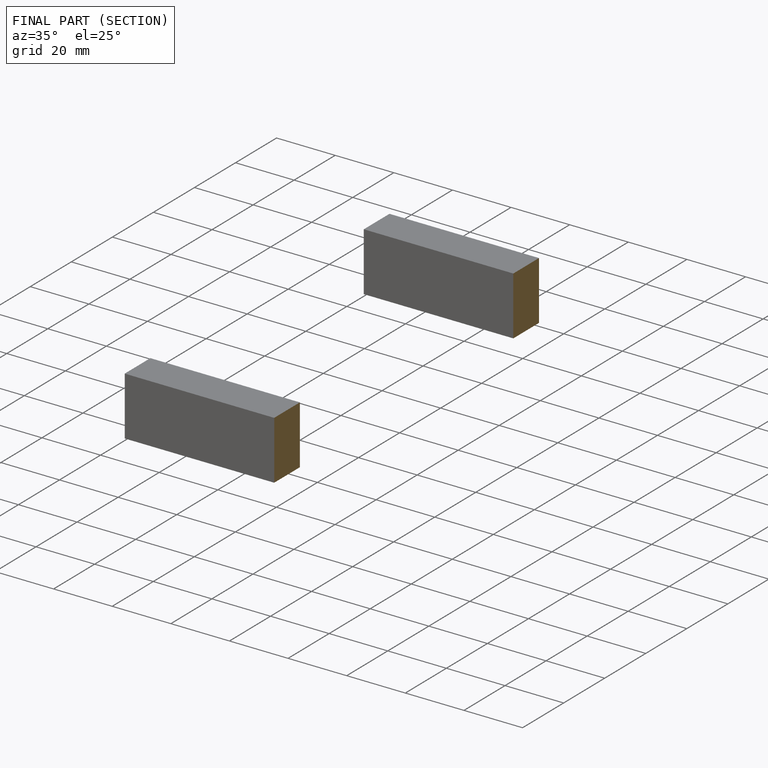
[diagram: finished part — half-section view (interior)]
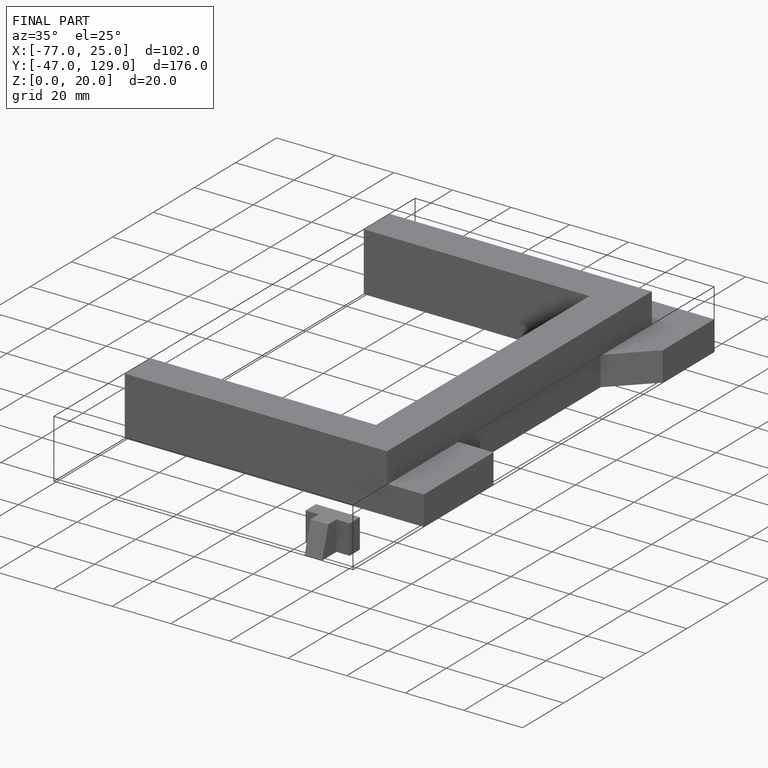
[diagram: finished part — iso view with bounding-box wireframe]
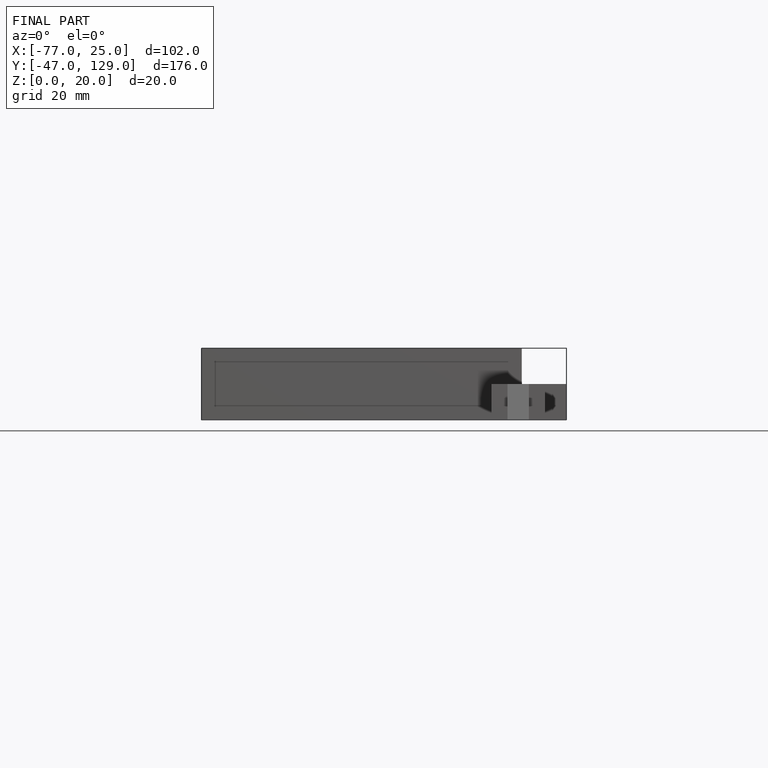
[diagram: finished part — front view with bounding-box wireframe]
